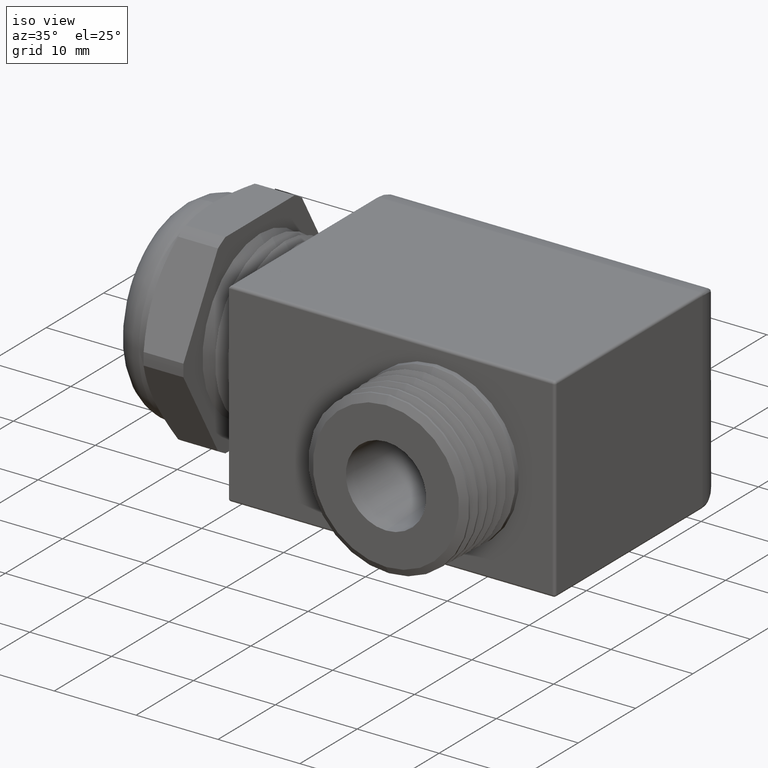
[diagram: clean part render]
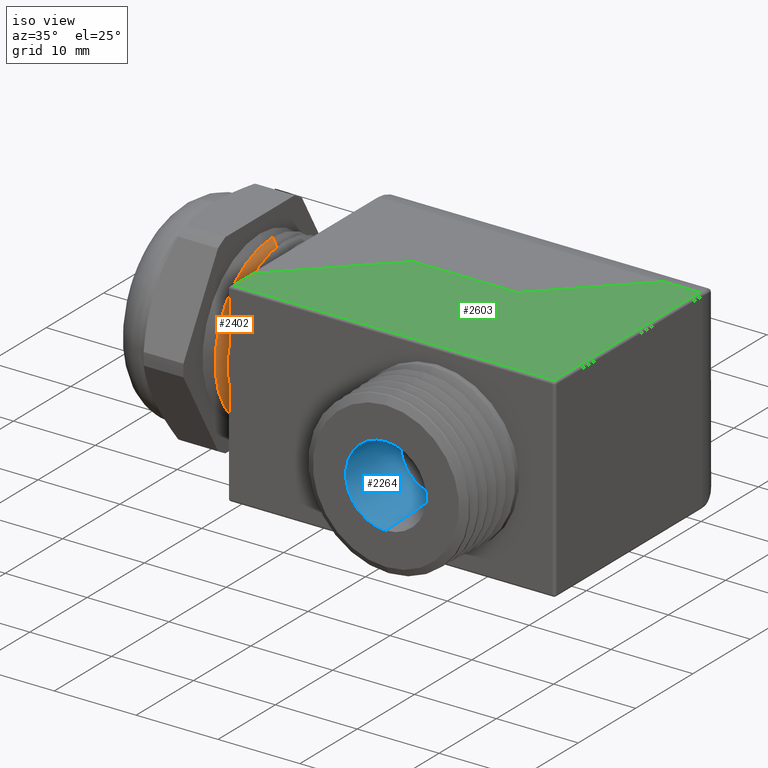
[diagram: same view with three faces highlighted in distinct colors, each labeled with its STEP entity id]
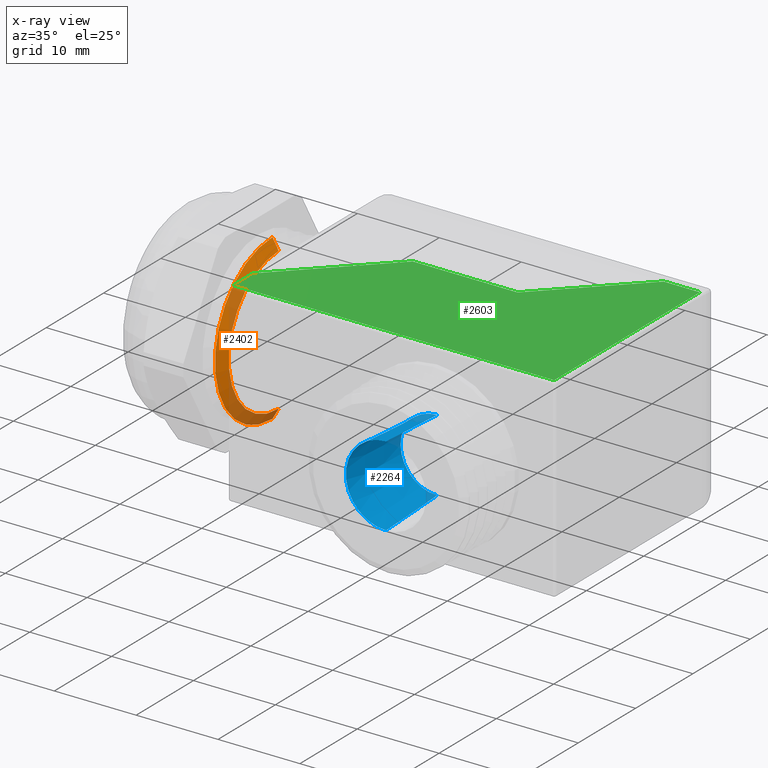
[diagram: x-ray of the same camera — body ghosted, the three highlighted faces saturated]
A machine part, iso view with three faces highlighted in distinct colors.
The next image is the same camera in x-ray (body ghosted, the three faces saturated) — at least one of them is partly hidden behind the body in this view.
Their STEP definitions:

[orange] entity #2402 — the highlighted conical surface has half-angle 60 deg.
#46 = DIRECTION ( 'NONE',  ( 0.0000000000000000000, 0.0000000000000000000, 1.000000000000000000 ) ) ;
#47 = DIRECTION ( 'NONE',  ( -1.000000000000000000, 0.0000000000000000000, 0.0000000000000000000 ) ) ;
#48 = AXIS2_PLACEMENT_3D ( 'NONE', #74, #47, #46 ) ;
#74 = CARTESIAN_POINT ( 'NONE',  ( -0.1810579087243452400, 0.0000000000000000000, 0.0000000000000000000 ) ) ;
#75 = CIRCLE ( 'NONE', #48, 0.3430385000000000200 ) ;
#261 = CARTESIAN_POINT ( 'NONE',  ( -0.2110578947368420000, 4.837354856632045600E-017, -0.3950000000000000200 ) ) ;
#262 = DIRECTION ( 'NONE',  ( -0.5000000000000003300, 1.060575238724906700E-016, -0.8660254037844383700 ) ) ;
#263 = VECTOR ( 'NONE', #262, 39.37007874015748100 ) ;
#264 = CARTESIAN_POINT ( 'NONE',  ( -0.2110578947368420000, 4.837354856632045600E-017, -0.3950000000000000200 ) ) ;
#265 = LINE ( 'NONE', #264, #263 ) ;
#266 = CARTESIAN_POINT ( 'NONE',  ( -0.2110578947368420000, 0.0000000000000000000, 0.3950000000000000200 ) ) ;
#278 = DIRECTION ( 'NONE',  ( -0.5000000000000003300, 0.0000000000000000000, 0.8660254037844383700 ) ) ;
#279 = VECTOR ( 'NONE', #278, 39.37007874015748100 ) ;
#280 = CARTESIAN_POINT ( 'NONE',  ( -0.2110578947368420000, 0.0000000000000000000, 0.3950000000000000200 ) ) ;
#281 = LINE ( 'NONE', #280, #279 ) ;
#294 = DIRECTION ( 'NONE',  ( 0.0000000000000000000, 0.0000000000000000000, 1.000000000000000000 ) ) ;
#295 = DIRECTION ( 'NONE',  ( -1.000000000000000000, 0.0000000000000000000, 0.0000000000000000000 ) ) ;
#296 = CARTESIAN_POINT ( 'NONE',  ( -0.2110578947368420000, 0.0000000000000000000, 0.0000000000000000000 ) ) ;
#297 = AXIS2_PLACEMENT_3D ( 'NONE', #296, #295, #294 ) ;
#298 = CONICAL_SURFACE ( 'NONE', #297, 0.3950000000000000200, 1.047197551196597400 ) ;
#299 = FACE_OUTER_BOUND ( 'NONE', #2403, .T. ) ;
#1570 = EDGE_CURVE ( 'NONE', #2420, #2416, #3224, .T. ) ;
#2024 = VERTEX_POINT ( 'NONE', #4034 ) ;
#2025 = VERTEX_POINT ( 'NONE', #4033 ) ;
#2248 = EDGE_CURVE ( 'NONE', #2025, #2024, #75, .T. ) ;
#2252 = ORIENTED_EDGE ( 'NONE', *, *, #2248, .T. ) ;
#2253 = ORIENTED_EDGE ( 'NONE', *, *, #2418, .F. ) ;
#2402 = ADVANCED_FACE ( 'NONE', ( #299 ), #298, .T. ) ;
#2403 = EDGE_LOOP ( 'NONE', ( #2253, #2252, #2508, #2504 ) ) ;
#2413 = EDGE_CURVE ( 'NONE', #2024, #2416, #281, .T. ) ;
#2416 = VERTEX_POINT ( 'NONE', #266 ) ;
#2418 = EDGE_CURVE ( 'NONE', #2025, #2420, #265, .T. ) ;
#2420 = VERTEX_POINT ( 'NONE', #261 ) ;
#2504 = ORIENTED_EDGE ( 'NONE', *, *, #1570, .F. ) ;
#2508 = ORIENTED_EDGE ( 'NONE', *, *, #2413, .T. ) ;
#3220 = DIRECTION ( 'NONE',  ( 0.0000000000000000000, 0.0000000000000000000, 1.000000000000000000 ) ) ;
#3221 = DIRECTION ( 'NONE',  ( -1.000000000000000000, 0.0000000000000000000, 0.0000000000000000000 ) ) ;
#3222 = CARTESIAN_POINT ( 'NONE',  ( -0.2110578947368420000, 0.0000000000000000000, 0.0000000000000000000 ) ) ;
#3223 = AXIS2_PLACEMENT_3D ( 'NONE', #3222, #3221, #3220 ) ;
#3224 = CIRCLE ( 'NONE', #3223, 0.3950000000000000200 ) ;
#4033 = CARTESIAN_POINT ( 'NONE',  ( -0.1810579087243452400, 4.519182433362568700E-017, -0.3430385000000000200 ) ) ;
#4034 = CARTESIAN_POINT ( 'NONE',  ( -0.1810579087243452400, 0.0000000000000000000, 0.3430385000000000200 ) ) ;

[blue] entity #2264 — the highlighted conical surface has half-angle 3 deg.
#79 = DIRECTION ( 'NONE',  ( 0.0000000000000000000, 1.000000000000000000, 0.0000000000000000000 ) ) ;
#80 = CARTESIAN_POINT ( 'NONE',  ( 1.000155367231638600, -0.9499999999999999600, -2.785979454945908300E-017 ) ) ;
#81 = AXIS2_PLACEMENT_3D ( 'NONE', #80, #79, #131 ) ;
#82 = CIRCLE ( 'NONE', #81, 0.1933427227490643600 ) ;
#83 = CARTESIAN_POINT ( 'NONE',  ( 0.8251553672316384000, -0.5999999999999986500, 2.143131898507865500E-017 ) ) ;
#88 = CARTESIAN_POINT ( 'NONE',  ( 1.000155367231638600, -0.5999999999999986500, 0.1749999999999999300 ) ) ;
#111 = DIRECTION ( 'NONE',  ( 0.0000000000000000000, 0.0000000000000000000, -1.000000000000000000 ) ) ;
#112 = DIRECTION ( 'NONE',  ( 0.0000000000000000000, -1.000000000000000000, 0.0000000000000000000 ) ) ;
#113 = CARTESIAN_POINT ( 'NONE',  ( 1.000155367231638600, -0.9499999999999999600, -2.785979454945908300E-017 ) ) ;
#114 = AXIS2_PLACEMENT_3D ( 'NONE', #113, #112, #111 ) ;
#115 = CONICAL_SURFACE ( 'NONE', #114, 0.1933427227490643600, 0.05235987755982959200 ) ;
#116 = FACE_OUTER_BOUND ( 'NONE', #2265, .T. ) ;
#131 = DIRECTION ( 'NONE',  ( 0.0000000000000000000, 0.0000000000000000000, 1.000000000000000000 ) ) ;
#136 = CARTESIAN_POINT ( 'NONE',  ( 1.000155367231638600, -0.5999999999999986500, -0.1750000000000000200 ) ) ;
#162 = DIRECTION ( 'NONE',  ( 0.0000000000000000000, -0.9986295347545738300, -0.05233595624294354300 ) ) ;
#163 = VECTOR ( 'NONE', #162, 39.37007874015748100 ) ;
#164 = CARTESIAN_POINT ( 'NONE',  ( 1.000155367231638600, -0.9499999999999999600, -0.1933427227490644200 ) ) ;
#169 = LINE ( 'NONE', #164, #163 ) ;
#1065 = CARTESIAN_POINT ( 'NONE',  ( 1.000155367231638600, -0.5999999999999986500, -2.785979454945908300E-017 ) ) ;
#1066 = CIRCLE ( 'NONE', #1108, 0.1749999999999999900 ) ;
#1070 = CARTESIAN_POINT ( 'NONE',  ( 1.000155367231638600, -0.5999999999999986500, -2.785979454945908300E-017 ) ) ;
#1106 = DIRECTION ( 'NONE',  ( 0.0000000000000000000, 0.0000000000000000000, -1.000000000000000000 ) ) ;
#1107 = DIRECTION ( 'NONE',  ( 0.0000000000000000000, -1.000000000000000000, 0.0000000000000000000 ) ) ;
#1108 = AXIS2_PLACEMENT_3D ( 'NONE', #1065, #1107, #1106 ) ;
#1118 = DIRECTION ( 'NONE',  ( 0.0000000000000000000, 0.0000000000000000000, -1.000000000000000000 ) ) ;
#1119 = DIRECTION ( 'NONE',  ( 0.0000000000000000000, -1.000000000000000000, 0.0000000000000000000 ) ) ;
#1120 = AXIS2_PLACEMENT_3D ( 'NONE', #1070, #1119, #1118 ) ;
#1121 = CIRCLE ( 'NONE', #1120, 0.1749999999999999900 ) ;
#1125 = CARTESIAN_POINT ( 'NONE',  ( 1.000155367231638600, -0.9499999999999999600, 0.1933427227490643300 ) ) ;
#1126 = CARTESIAN_POINT ( 'NONE',  ( 1.000155367231638600, -0.9499999999999999600, -0.1933427227490644200 ) ) ;
#1127 = DIRECTION ( 'NONE',  ( 6.409306129323676300E-018, -0.9986295347545738300, 0.05233595624294354300 ) ) ;
#1128 = VECTOR ( 'NONE', #1127, 39.37007874015748100 ) ;
#1129 = CARTESIAN_POINT ( 'NONE',  ( 1.000155367231638600, -0.9499999999999999600, 0.1933427227490643300 ) ) ;
#1130 = LINE ( 'NONE', #1129, #1128 ) ;
#2258 = VERTEX_POINT ( 'NONE', #136 ) ;
#2264 = ADVANCED_FACE ( 'NONE', ( #116 ), #115, .F. ) ;
#2265 = EDGE_LOOP ( 'NONE', ( #2595, #2800, #2803, #2362, #2364 ) ) ;
#2266 = VERTEX_POINT ( 'NONE', #88 ) ;
#2270 = VERTEX_POINT ( 'NONE', #83 ) ;
#2271 = EDGE_CURVE ( 'NONE', #2804, #2802, #82, .T. ) ;
#2362 = ORIENTED_EDGE ( 'NONE', *, *, #2363, .F. ) ;
#2363 = EDGE_CURVE ( 'NONE', #2258, #2804, #169, .T. ) ;
#2364 = ORIENTED_EDGE ( 'NONE', *, *, #2808, .F. ) ;
#2595 = ORIENTED_EDGE ( 'NONE', *, *, #2799, .F. ) ;
#2799 = EDGE_CURVE ( 'NONE', #2266, #2270, #1066, .T. ) ;
#2800 = ORIENTED_EDGE ( 'NONE', *, *, #2801, .T. ) ;
#2801 = EDGE_CURVE ( 'NONE', #2266, #2802, #1130, .T. ) ;
#2802 = VERTEX_POINT ( 'NONE', #1125 ) ;
#2803 = ORIENTED_EDGE ( 'NONE', *, *, #2271, .F. ) ;
#2804 = VERTEX_POINT ( 'NONE', #1126 ) ;
#2808 = EDGE_CURVE ( 'NONE', #2270, #2258, #1121, .T. ) ;

[green] entity #2603 — the highlighted planar face has unit normal (0, 0, -1).
#472 = CARTESIAN_POINT ( 'NONE',  ( 1.555344632768361500, -0.5873446327683615700, 0.4699999999999998600 ) ) ;
#571 = DIRECTION ( 'NONE',  ( 1.000000000000000000, 2.319516484482452200E-017, 0.0000000000000000000 ) ) ;
#572 = VECTOR ( 'NONE', #571, 39.37007874015748100 ) ;
#573 = CARTESIAN_POINT ( 'NONE',  ( 1.232614984114216400, 0.0000000000000000000, 0.4699999999999998600 ) ) ;
#574 = LINE ( 'NONE', #573, #572 ) ;
#624 = CARTESIAN_POINT ( 'NONE',  ( 1.232614984114216400, 0.2370589800028680400, 0.4699999999999998600 ) ) ;
#625 = AXIS2_PLACEMENT_3D ( 'NONE', #624, #633, #632 ) ;
#626 = PLANE ( 'NONE',  #625 ) ;
#632 = DIRECTION ( 'NONE',  ( -1.000000000000000000, 0.0000000000000000000, 0.0000000000000000000 ) ) ;
#633 = DIRECTION ( 'NONE',  ( 0.0000000000000000000, 0.0000000000000000000, -1.000000000000000000 ) ) ;
#711 = DIRECTION ( 'NONE',  ( 1.000000000000000000, 1.306687496969513800E-016, 0.0000000000000000000 ) ) ;
#712 = VECTOR ( 'NONE', #711, 39.37007874015748100 ) ;
#713 = CARTESIAN_POINT ( 'NONE',  ( 1.567999999999999800, -0.5873446327683615700, 0.4699999999999998600 ) ) ;
#714 = LINE ( 'NONE', #713, #712 ) ;
#732 = FACE_OUTER_BOUND ( 'NONE', #2604, .T. ) ;
#736 = CARTESIAN_POINT ( 'NONE',  ( 1.555344632768361800, 0.4133333333333332700, 0.4699999999999998600 ) ) ;
#737 = DIRECTION ( 'NONE',  ( 0.0000000000000000000, -1.000000000000000000, 0.0000000000000000000 ) ) ;
#738 = VECTOR ( 'NONE', #737, 39.37007874015748100 ) ;
#739 = CARTESIAN_POINT ( 'NONE',  ( 0.01265536723163842100, 0.2370589800028680400, 0.4699999999999998600 ) ) ;
#740 = LINE ( 'NONE', #739, #738 ) ;
#741 = CARTESIAN_POINT ( 'NONE',  ( 0.01265536723163841900, -0.5873446327683616900, 0.4699999999999998600 ) ) ;
#828 = CARTESIAN_POINT ( 'NONE',  ( 0.4639999999999946400, 0.0000000000000000000, 0.4699999999999998600 ) ) ;
#870 = CARTESIAN_POINT ( 'NONE',  ( 1.218836982058541000, 0.2508369820585435500, 0.4699999999999998600 ) ) ;
#871 = LINE ( 'NONE', #870, #874 ) ;
#872 = CARTESIAN_POINT ( 'NONE',  ( 1.381333333333332600, 0.4133333333333332700, 0.4699999999999998600 ) ) ;
#873 = DIRECTION ( 'NONE',  ( 0.7071067811865512400, 0.7071067811865436900, 0.0000000000000000000 ) ) ;
#874 = VECTOR ( 'NONE', #873, 39.37007874015748900 ) ;
#896 = CARTESIAN_POINT ( 'NONE',  ( 0.9679999999999949800, -6.137788176939989100E-018, 0.4699999999999998600 ) ) ;
#950 = CARTESIAN_POINT ( 'NONE',  ( 0.01265536723163842100, -0.4513446327683515200, 0.4699999999999998600 ) ) ;
#952 = CARTESIAN_POINT ( 'NONE',  ( 0.9668369820585436300, 0.5028369820585436600, 0.4699999999999998600 ) ) ;
#953 = LINE ( 'NONE', #952, #983 ) ;
#982 = DIRECTION ( 'NONE',  ( 0.7071067811865512400, 0.7071067811865436900, 0.0000000000000000000 ) ) ;
#983 = VECTOR ( 'NONE', #982, 39.37007874015748900 ) ;
#1033 = DIRECTION ( 'NONE',  ( -1.000000000000000000, 0.0000000000000000000, 0.0000000000000000000 ) ) ;
#1034 = VECTOR ( 'NONE', #1033, 39.37007874015748100 ) ;
#1035 = CARTESIAN_POINT ( 'NONE',  ( 1.232614984114216400, 0.4133333333333332700, 0.4699999999999998600 ) ) ;
#1036 = LINE ( 'NONE', #1035, #1034 ) ;
#1037 = DIRECTION ( 'NONE',  ( 2.276539994720219800E-016, 1.000000000000000000, 0.0000000000000000000 ) ) ;
#1038 = VECTOR ( 'NONE', #1037, 39.37007874015748100 ) ;
#1039 = CARTESIAN_POINT ( 'NONE',  ( 1.555344632768361800, 0.4133333333333332200, 0.4699999999999998600 ) ) ;
#1040 = LINE ( 'NONE', #1039, #1038 ) ;
#2527 = EDGE_CURVE ( 'NONE', #2672, #2649, #574, .T. ) ;
#2548 = VERTEX_POINT ( 'NONE', #472 ) ;
#2603 = ADVANCED_FACE ( 'NONE', ( #732 ), #626, .F. ) ;
#2604 = EDGE_LOOP ( 'NONE', ( #2618, #2619, #2620, #2621, #2623, #2828, #2830 ) ) ;
#2617 = VERTEX_POINT ( 'NONE', #741 ) ;
#2618 = ORIENTED_EDGE ( 'NONE', *, *, #2651, .F. ) ;
#2619 = ORIENTED_EDGE ( 'NONE', *, *, #2527, .F. ) ;
#2620 = ORIENTED_EDGE ( 'NONE', *, *, #2727, .F. ) ;
#2621 = ORIENTED_EDGE ( 'NONE', *, *, #2622, .T. ) ;
#2622 = EDGE_CURVE ( 'NONE', #2725, #2617, #740, .T. ) ;
#2623 = ORIENTED_EDGE ( 'NONE', *, *, #2625, .T. ) ;
#2624 = VERTEX_POINT ( 'NONE', #736 ) ;
#2625 = EDGE_CURVE ( 'NONE', #2617, #2548, #714, .T. ) ;
#2649 = VERTEX_POINT ( 'NONE', #896 ) ;
#2651 = EDGE_CURVE ( 'NONE', #2649, #2652, #871, .T. ) ;
#2652 = VERTEX_POINT ( 'NONE', #872 ) ;
#2672 = VERTEX_POINT ( 'NONE', #828 ) ;
#2725 = VERTEX_POINT ( 'NONE', #950 ) ;
#2727 = EDGE_CURVE ( 'NONE', #2725, #2672, #953, .T. ) ;
#2828 = ORIENTED_EDGE ( 'NONE', *, *, #2829, .T. ) ;
#2829 = EDGE_CURVE ( 'NONE', #2548, #2624, #1040, .T. ) ;
#2830 = ORIENTED_EDGE ( 'NONE', *, *, #2831, .T. ) ;
#2831 = EDGE_CURVE ( 'NONE', #2624, #2652, #1036, .T. ) ;